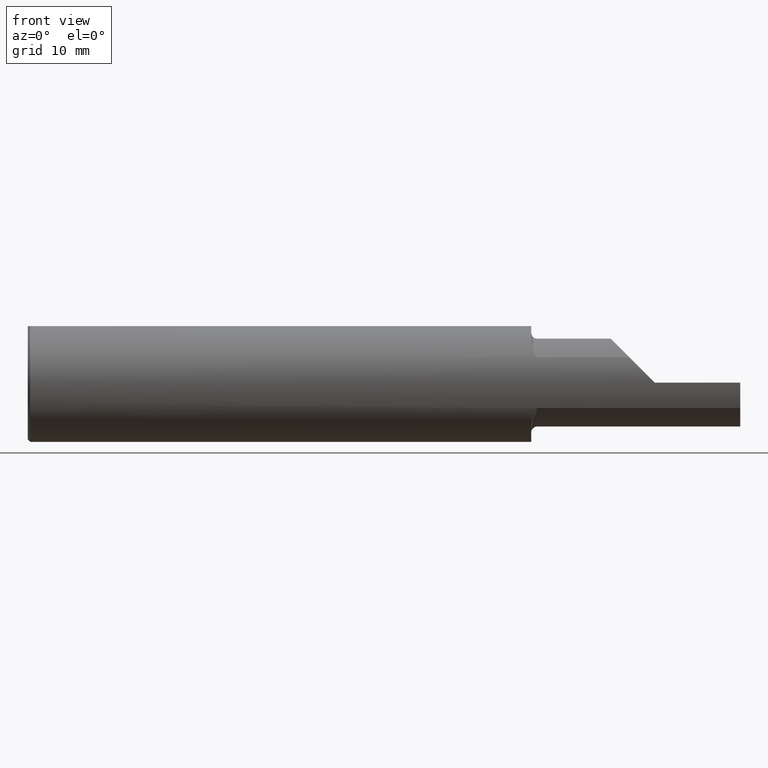
[diagram: clean part render]
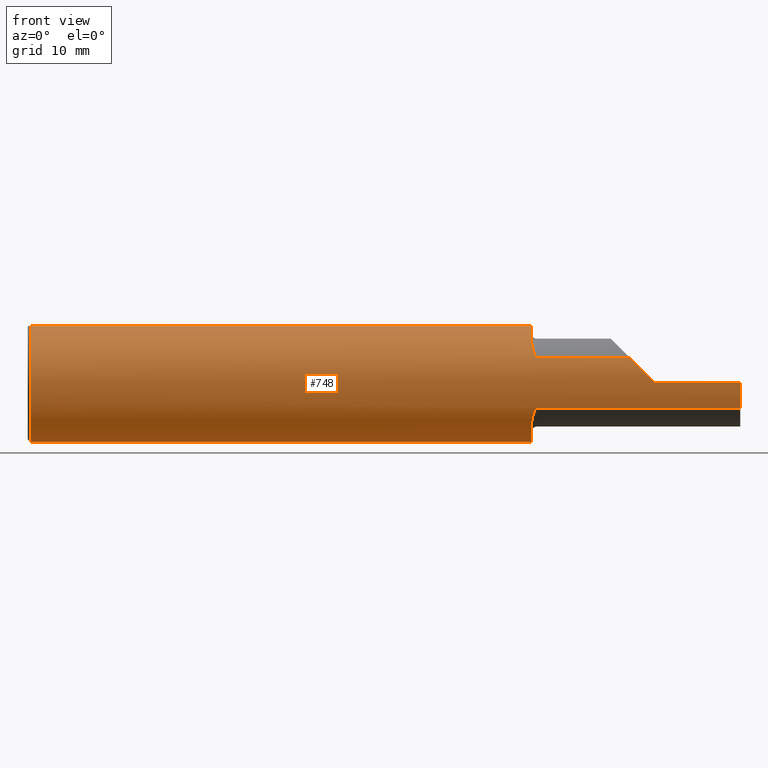
[diagram: same view with one face highlighted and labeled with its STEP entity id]
A machine part, front view. The second image highlights one B-rep face of the part: STEP entity #748.
In plain terms, the highlighted cylindrical surface (partial cylindrical patch) has radius 6.3462 mm, axis along (-1, -0, -0).
Its self-contained STEP definition (entity closure, byte-faithful):
#12 = FACE_OUTER_BOUND ( 'NONE', #684, .T. ) ;
#16 = CARTESIAN_POINT ( 'NONE',  ( 2.123067695838076308, -0.1933460832554989295, -0.1585269497938188166 ) ) ;
#19 = CARTESIAN_POINT ( 'NONE',  ( 2.145000000000000018, -0.2258019038076143625, -0.1069510296203682181 ) ) ;
#21 = CARTESIAN_POINT ( 'NONE',  ( 0.009999999999999927350, 0.000000000000000000, -0.2498499999999999888 ) ) ;
#28 = CARTESIAN_POINT ( 'NONE',  ( 2.640000000000000124, -0.2498499999999999610, 1.053196247266722782E-16 ) ) ;
#29 = CARTESIAN_POINT ( 'NONE',  ( 2.121924696059274140, -0.1871283507626237963, -0.1658250778734007835 ) ) ;
#34 = CARTESIAN_POINT ( 'NONE',  ( 2.143766764954792237, -0.2258019038076143348, -0.1069510296203683153 ) ) ;
#48 = CARTESIAN_POINT ( 'NONE',  ( 2.120000000000000551, -0.1598366399465592502, 0.1920345568656693092 ) ) ;
#53 = EDGE_CURVE ( 'NONE', #469, #461, #367, .T. ) ;
#59 = ORIENTED_EDGE ( 'NONE', *, *, #562, .T. ) ;
#73 = ORIENTED_EDGE ( 'NONE', *, *, #850, .T. ) ;
#88 = CARTESIAN_POINT ( 'NONE',  ( 2.566617523761941744, -0.2417016428557104135, 0.07338247623805806141 ) ) ;
#106 = ORIENTED_EDGE ( 'NONE', *, *, #486, .F. ) ;
#113 = CARTESIAN_POINT ( 'NONE',  ( 3.000000000000000444, -0.2258019038076141682, -0.1069510296203685096 ) ) ;
#115 = CARTESIAN_POINT ( 'NONE',  ( 2.533048970379631282, -0.2258019038076143903, 0.1069510296203681071 ) ) ;
#117 = VERTEX_POINT ( 'NONE', #306 ) ;
#119 = CARTESIAN_POINT ( 'NONE',  ( 2.143775935477924666, -0.2258019038086054586, 0.1069510296182757531 ) ) ;
#120 = ORIENTED_EDGE ( 'NONE', *, *, #682, .T. ) ;
#121 = CARTESIAN_POINT ( 'NONE',  ( 2.145000000000000018, -0.2258019038076144458, 0.1069510296203681765 ) ) ;
#126 = CARTESIAN_POINT ( 'NONE',  ( 2.139912704619970629, -0.2245351419255227909, 0.1095897952907190220 ) ) ;
#132 = VERTEX_POINT ( 'NONE', #804 ) ;
#137 = ORIENTED_EDGE ( 'NONE', *, *, #419, .F. ) ;
#139 = AXIS2_PLACEMENT_3D ( 'NONE', #731, #172, #666 ) ;
#148 = DIRECTION ( 'NONE',  ( 0.000000000000000000, 0.000000000000000000, 1.000000000000000000 ) ) ;
#152 = DIRECTION ( 'NONE',  ( -1.000000000000000000, -0.000000000000000000, -0.000000000000000000 ) ) ;
#157 = CARTESIAN_POINT ( 'NONE',  ( 2.136600878232106204, -0.2222589477840662131, -0.1141522670044877730 ) ) ;
#160 = CARTESIAN_POINT ( 'NONE',  ( 2.137712610578065942, -0.2232268177254527475, -0.1122435923601498714 ) ) ;
#162 = CARTESIAN_POINT ( 'NONE',  ( 3.000000000000000444, -0.2498499999999999888, 0.000000000000000000 ) ) ;
#164 = EDGE_CURVE ( 'NONE', #363, #117, #457, .T. ) ;
#172 = DIRECTION ( 'NONE',  ( 1.000000000000000000, 0.000000000000000000, 0.000000000000000000 ) ) ;
#174 = VECTOR ( 'NONE', #908, 39.37007874015748143 ) ;
#175 = CARTESIAN_POINT ( 'NONE',  ( 2.126157214307796472, -0.2047183078027748626, -0.1435406429257672645 ) ) ;
#180 = CARTESIAN_POINT ( 'NONE',  ( 2.120407510365825310, -0.1741966726826632283, 0.1793628509906920465 ) ) ;
#188 = CARTESIAN_POINT ( 'NONE',  ( 2.126159583778305162, -0.2047174793402739279, 0.1435375904728281027 ) ) ;
#192 = CARTESIAN_POINT ( 'NONE',  ( 2.121956565677478146, -0.1873305359567935535, 0.1655982590106568064 ) ) ;
#193 = ORIENTED_EDGE ( 'NONE', *, *, #504, .F. ) ;
#207 = CARTESIAN_POINT ( 'NONE',  ( 2.120000000000000551, 0.000000000000000000, 0.000000000000000000 ) ) ;
#218 = B_SPLINE_CURVE_WITH_KNOTS ( 'NONE', 3,
 ( #19, #34, #237, #742, #668, #160, #157, #321, #245, #609, #175, #16, #29, #530, #882, #453 ),
 .UNSPECIFIED., .F., .F.,
 ( 4, 2, 2, 2, 2, 2, 2, 4 ),
 ( 1.967731640926042564E-07, 9.266832530625347989E-05, 0.0001851398774484143731, 0.0003700829817327370812, 0.0007399691903013736610, 0.001479741607438647038, 0.002219514024575919113, 0.002959286441713191405 ),
 .UNSPECIFIED. ) ;
#220 = ORIENTED_EDGE ( 'NONE', *, *, #627, .F. ) ;
#222 = DIRECTION ( 'NONE',  ( 0.000000000000000000, 0.000000000000000000, -1.000000000000000000 ) ) ;
#230 = CIRCLE ( 'NONE', #709, 0.2498499999999999888 ) ;
#237 = CARTESIAN_POINT ( 'NONE',  ( 2.142621204867376505, -0.2255690416234743534, -0.1074438938734543214 ) ) ;
#245 = CARTESIAN_POINT ( 'NONE',  ( 2.132072761667481053, -0.2169747454531466835, -0.1239680304230237062 ) ) ;
#255 = DIRECTION ( 'NONE',  ( 1.000000000000000000, 0.000000000000000000, 0.000000000000000000 ) ) ;
#257 = ORIENTED_EDGE ( 'NONE', *, *, #444, .F. ) ;
#261 = CARTESIAN_POINT ( 'NONE',  ( 2.123087269985822090, -0.1934276160908514341, 0.1584236205860445057 ) ) ;
#278 = CARTESIAN_POINT ( 'NONE',  ( 0.000000000000000000, 0.000000000000000000, 0.000000000000000000 ) ) ;
#280 = VERTEX_POINT ( 'NONE', #380 ) ;
#282 = EDGE_CURVE ( 'NONE', #117, #280, #218, .T. ) ;
#286 = CARTESIAN_POINT ( 'NONE',  ( 2.120000000000000551, 0.000000000000000000, 0.000000000000000000 ) ) ;
#287 = VERTEX_POINT ( 'NONE', #816 ) ;
#291 = CARTESIAN_POINT ( 'NONE',  ( 2.120000000000000551, -0.07650098038587548055, 0.2378499999999998671 ) ) ;
#293 = B_SPLINE_CURVE_WITH_KNOTS ( 'NONE', 3,
 ( #48, #764, #180, #192, #261, #188, #569, #488, #415, #420, #690, #126, #898, #405, #119, #121 ),
 .UNSPECIFIED., .F., .F.,
 ( 4, 2, 2, 2, 2, 2, 2, 4 ),
 ( 0.0007713084168120903309, 0.001497239385841620841, 0.002223170354871151135, 0.002949101323900681429, 0.003312066808415443757, 0.003493549550672820150, 0.003584290921801507913, 0.003675032292930194809 ),
 .UNSPECIFIED. ) ;
#306 = CARTESIAN_POINT ( 'NONE',  ( 2.145000000000000018, -0.2258019038076143625, -0.1069510296203682181 ) ) ;
#310 = CARTESIAN_POINT ( 'NONE',  ( 2.567644294575713274E-31, -0.2498499999999999610, 8.776635393889356229E-16 ) ) ;
#321 = CARTESIAN_POINT ( 'NONE',  ( 2.133599192740056605, -0.2192187664759579768, -0.1199465908399891534 ) ) ;
#322 = ORIENTED_EDGE ( 'NONE', *, *, #861, .T. ) ;
#345 = ORIENTED_EDGE ( 'NONE', *, *, #53, .T. ) ;
#352 = CIRCLE ( 'NONE', #596, 0.2498499999999999888 ) ;
#363 = VERTEX_POINT ( 'NONE', #113 ) ;
#367 =( BOUNDED_CURVE ( )  B_SPLINE_CURVE ( 3, ( #28, #509, #88, #604 ),
 .UNSPECIFIED., .F., .F. ) 
 B_SPLINE_CURVE_WITH_KNOTS ( ( 4, 4 ),
 ( 4.712388980384689674, 5.154735109466819232 ),
 .UNSPECIFIED. ) 
 CURVE ( )  GEOMETRIC_REPRESENTATION_ITEM ( )  RATIONAL_B_SPLINE_CURVE ( ( 1.000000000000000000, 0.9837605203333757986, 0.9837605203333757986, 1.000000000000000000 ) ) 
 REPRESENTATION_ITEM ( '' )  );
#380 = CARTESIAN_POINT ( 'NONE',  ( 2.120000000000000551, -0.1598366399465592502, -0.1920345568656693092 ) ) ;
#395 = ORIENTED_EDGE ( 'NONE', *, *, #642, .F. ) ;
#405 = CARTESIAN_POINT ( 'NONE',  ( 2.142642439405637589, -0.2255733860777292266, 0.1074346955532717168 ) ) ;
#415 = CARTESIAN_POINT ( 'NONE',  ( 2.133611583263256506, -0.2192375443050551265, 0.1199127921005515018 ) ) ;
#419 = EDGE_CURVE ( 'NONE', #484, #429, #293, .T. ) ;
#420 = CARTESIAN_POINT ( 'NONE',  ( 2.136631274780734557, -0.2222865629965584955, 0.1140986214717076147 ) ) ;
#429 = VERTEX_POINT ( 'NONE', #834 ) ;
#439 = DIRECTION ( 'NONE',  ( 1.000000000000000000, 0.000000000000000000, 0.000000000000000000 ) ) ;
#444 = EDGE_CURVE ( 'NONE', #287, #538, #548, .T. ) ;
#453 = CARTESIAN_POINT ( 'NONE',  ( 2.120000000000000551, -0.1598366399465592502, -0.1920345568656693092 ) ) ;
#457 = LINE ( 'NONE', #801, #825 ) ;
#461 = VERTEX_POINT ( 'NONE', #115 ) ;
#462 = VECTOR ( 'NONE', #676, 39.37007874015748143 ) ;
#469 = VERTEX_POINT ( 'NONE', #903 ) ;
#484 = VERTEX_POINT ( 'NONE', #767 ) ;
#486 = EDGE_CURVE ( 'NONE', #681, #132, #614, .T. ) ;
#488 = CARTESIAN_POINT ( 'NONE',  ( 2.132085498783673483, -0.2169955490820245081, 0.1239323465093143811 ) ) ;
#500 = DIRECTION ( 'NONE',  ( -1.000000000000000000, -0.000000000000000000, -0.000000000000000000 ) ) ;
#504 = EDGE_CURVE ( 'NONE', #429, #461, #618, .T. ) ;
#509 = CARTESIAN_POINT ( 'NONE',  ( 2.602856366925426546, -0.2498500000000000443, 0.03714363307457331509 ) ) ;
#522 = VECTOR ( 'NONE', #255, 39.37007874015748143 ) ;
#530 = CARTESIAN_POINT ( 'NONE',  ( 2.120394743209659705, -0.1740183947823813193, -0.1795343264900121638 ) ) ;
#538 = VERTEX_POINT ( 'NONE', #291 ) ;
#548 = LINE ( 'NONE', #701, #856 ) ;
#559 = AXIS2_PLACEMENT_3D ( 'NONE', #278, #500, #577 ) ;
#561 = DIRECTION ( 'NONE',  ( 1.000000000000000000, 0.000000000000000000, 0.000000000000000000 ) ) ;
#562 = EDGE_CURVE ( 'NONE', #363, #833, #754, .T. ) ;
#569 = CARTESIAN_POINT ( 'NONE',  ( 2.128055368518485313, -0.2099128102804983242, 0.1358187170864159354 ) ) ;
#572 = DIRECTION ( 'NONE',  ( 0.000000000000000000, 0.000000000000000000, -1.000000000000000000 ) ) ;
#577 = DIRECTION ( 'NONE',  ( 0.000000000000000000, 0.000000000000000000, 1.000000000000000000 ) ) ;
#596 = AXIS2_PLACEMENT_3D ( 'NONE', #207, #439, #651 ) ;
#604 = CARTESIAN_POINT ( 'NONE',  ( 2.533048970379631282, -0.2258019038076143903, 0.1069510296203681071 ) ) ;
#607 = LINE ( 'NONE', #310, #462 ) ;
#609 = CARTESIAN_POINT ( 'NONE',  ( 2.128062043806189241, -0.2099213682548098092, -0.1358028076871557743 ) ) ;
#614 = LINE ( 'NONE', #629, #174 ) ;
#618 = LINE ( 'NONE', #894, #522 ) ;
#627 = EDGE_CURVE ( 'NONE', #538, #484, #352, .T. ) ;
#629 = CARTESIAN_POINT ( 'NONE',  ( 0.000000000000000000, 0.07650098038587520299, 0.2378499999999998671 ) ) ;
#636 = CIRCLE ( 'NONE', #799, 0.2498499999999999888 ) ;
#642 = EDGE_CURVE ( 'NONE', #280, #681, #636, .T. ) ;
#649 = CARTESIAN_POINT ( 'NONE',  ( 0.009999999999999927350, 0.000000000000000000, 0.000000000000000000 ) ) ;
#651 = DIRECTION ( 'NONE',  ( 0.000000000000000000, 0.000000000000000000, -1.000000000000000000 ) ) ;
#662 = ORIENTED_EDGE ( 'NONE', *, *, #282, .F. ) ;
#666 = DIRECTION ( 'NONE',  ( 0.000000000000000000, 0.000000000000000000, -1.000000000000000000 ) ) ;
#668 = CARTESIAN_POINT ( 'NONE',  ( 2.139886957248370525, -0.2245222508766573088, -0.1096163070930387673 ) ) ;
#676 = DIRECTION ( 'NONE',  ( -1.000000000000000000, -0.000000000000000000, -0.000000000000000000 ) ) ;
#677 = ORIENTED_EDGE ( 'NONE', *, *, #164, .F. ) ;
#681 = VERTEX_POINT ( 'NONE', #849 ) ;
#682 = EDGE_CURVE ( 'NONE', #287, #811, #230, .T. ) ;
#684 = EDGE_LOOP ( 'NONE', ( #677, #59, #322, #345, #193, #137, #220, #257, #120, #73, #106, #395, #662 ) ) ;
#690 = CARTESIAN_POINT ( 'NONE',  ( 2.137753075814207371, -0.2232556704115951640, 0.1121857874000737609 ) ) ;
#701 = CARTESIAN_POINT ( 'NONE',  ( 0.000000000000000000, -0.07650098038587520299, 0.2378499999999998671 ) ) ;
#705 = DIRECTION ( 'NONE',  ( 1.000000000000000000, 0.000000000000000000, 0.000000000000000000 ) ) ;
#709 = AXIS2_PLACEMENT_3D ( 'NONE', #649, #842, #222 ) ;
#720 = CYLINDRICAL_SURFACE ( 'NONE', #559, 0.2498499999999999888 ) ;
#731 = CARTESIAN_POINT ( 'NONE',  ( 0.009999999999999927350, 0.000000000000000000, 0.000000000000000000 ) ) ;
#742 = CARTESIAN_POINT ( 'NONE',  ( 2.140683622228452432, -0.2249211699927308183, -0.1087936126742920784 ) ) ;
#748 = ADVANCED_FACE ( 'NONE', ( #12 ), #720, .T. ) ;
#754 = CIRCLE ( 'NONE', #864, 0.2498499999999999888 ) ;
#764 = CARTESIAN_POINT ( 'NONE',  ( 2.120000000000000995, -0.1671615771993071875, 0.1859377721129249761 ) ) ;
#767 = CARTESIAN_POINT ( 'NONE',  ( 2.120000000000000551, -0.1598366399465592502, 0.1920345568656693092 ) ) ;
#799 = AXIS2_PLACEMENT_3D ( 'NONE', #286, #705, #572 ) ;
#801 = CARTESIAN_POINT ( 'NONE',  ( 2.494096854403708541, -0.2258019038076142238, -0.1069510296203684263 ) ) ;
#804 = CARTESIAN_POINT ( 'NONE',  ( 0.009999999999999927350, 0.07650098038587520299, 0.2378499999999998671 ) ) ;
#811 = VERTEX_POINT ( 'NONE', #21 ) ;
#816 = CARTESIAN_POINT ( 'NONE',  ( 0.009999999999999927350, -0.07650098038587520299, 0.2378499999999998671 ) ) ;
#825 = VECTOR ( 'NONE', #152, 39.37007874015748143 ) ;
#833 = VERTEX_POINT ( 'NONE', #162 ) ;
#834 = CARTESIAN_POINT ( 'NONE',  ( 2.145000000000000018, -0.2258019038076144458, 0.1069510296203681765 ) ) ;
#842 = DIRECTION ( 'NONE',  ( 1.000000000000000000, 0.000000000000000000, 0.000000000000000000 ) ) ;
#847 = DIRECTION ( 'NONE',  ( -1.000000000000000000, -0.000000000000000000, -0.000000000000000000 ) ) ;
#849 = CARTESIAN_POINT ( 'NONE',  ( 2.120000000000000551, 0.07650098038587520299, 0.2378499999999998671 ) ) ;
#850 = EDGE_CURVE ( 'NONE', #811, #132, #851, .T. ) ;
#851 = CIRCLE ( 'NONE', #139, 0.2498499999999999888 ) ;
#856 = VECTOR ( 'NONE', #561, 39.37007874015748143 ) ;
#857 = CARTESIAN_POINT ( 'NONE',  ( 3.000000000000000444, 0.000000000000000000, 0.000000000000000000 ) ) ;
#861 = EDGE_CURVE ( 'NONE', #833, #469, #607, .T. ) ;
#864 = AXIS2_PLACEMENT_3D ( 'NONE', #857, #847, #148 ) ;
#882 = CARTESIAN_POINT ( 'NONE',  ( 2.120000000000000107, -0.1671052035161199600, -0.1859846937724904947 ) ) ;
#894 = CARTESIAN_POINT ( 'NONE',  ( 2.494096854403708541, -0.2258019038076142238, 0.1069510296203684263 ) ) ;
#898 = CARTESIAN_POINT ( 'NONE',  ( 2.140717781145567322, -0.2249352693140918846, 0.1087643826525644813 ) ) ;
#903 = CARTESIAN_POINT ( 'NONE',  ( 2.640000000000000124, -0.2498499999999999610, 1.053196247266722782E-16 ) ) ;
#908 = DIRECTION ( 'NONE',  ( -1.000000000000000000, -0.000000000000000000, -0.000000000000000000 ) ) ;